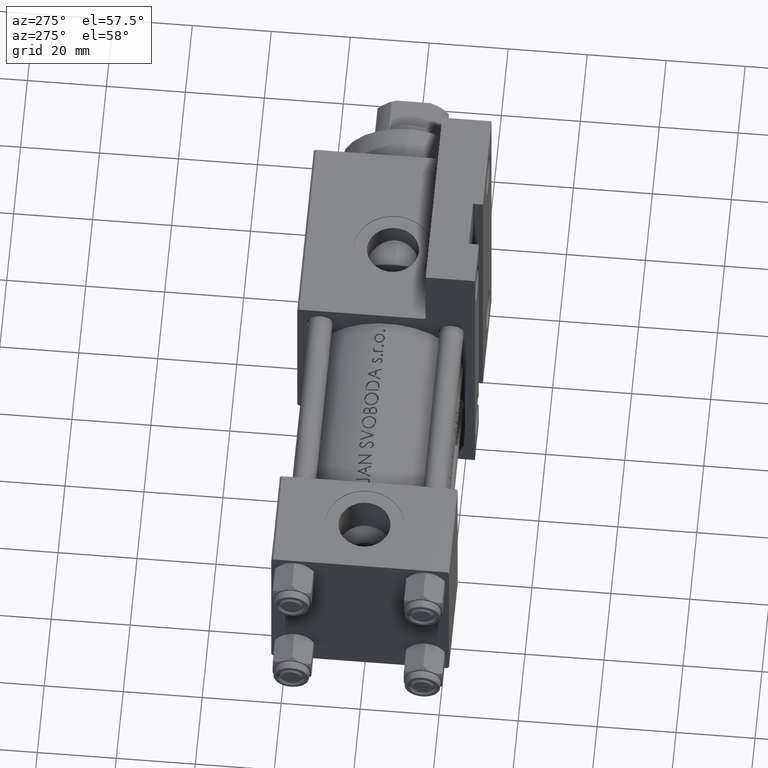
[diagram: clean part render]
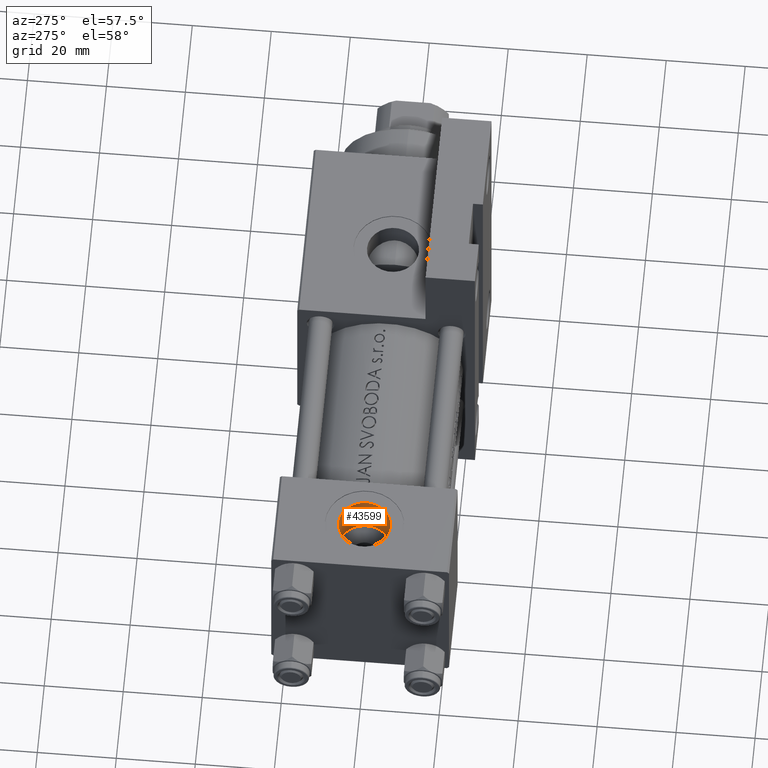
[diagram: same view with one face highlighted and labeled with its STEP entity id]
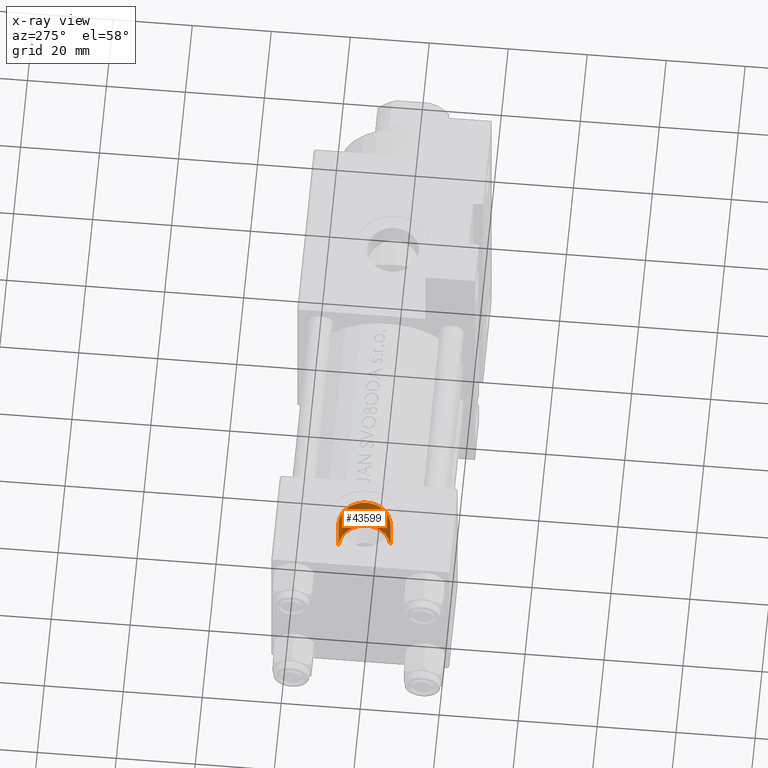
[diagram: x-ray of the same camera — body ghosted, the highlighted face saturated]
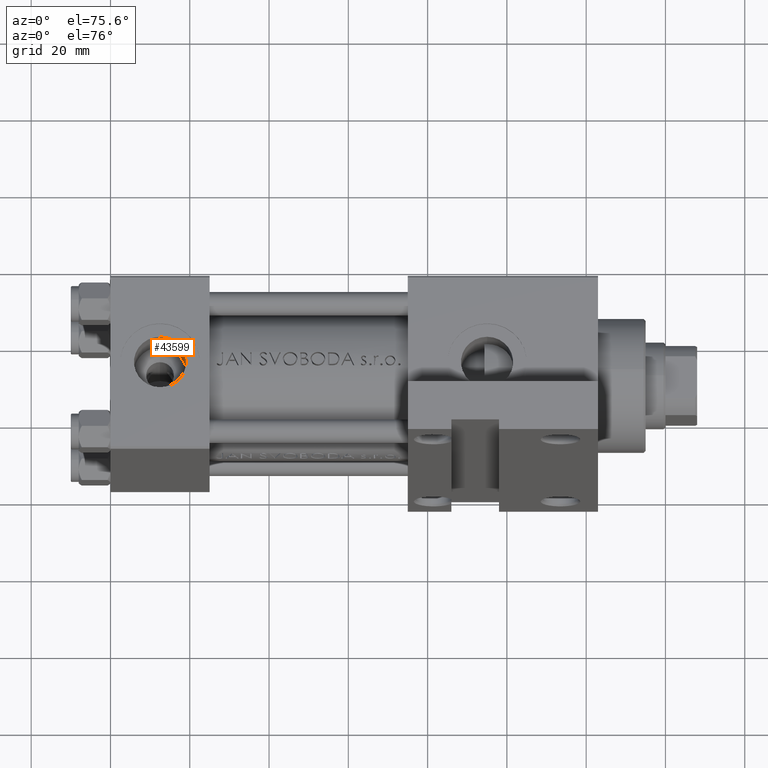
[diagram: same view with one face highlighted and labeled with its STEP entity id]
A machine part, auxiliary view. The second image highlights one B-rep face of the part: STEP entity #43599.
The next image is the same camera in x-ray: the body ghosted, the highlighted face saturated — about 0% of this face is hidden behind the body in this view.
A second angle (auxiliary view) of the same face is appended — the face is thin or edge-on in the first view.
In plain terms, the highlighted cylindrical surface (edge-blend (fillet) strip) has radius 6.58 mm, axis along (-0, -0, 1).
Its self-contained STEP definition (entity closure, byte-faithful):
#323 = DIRECTION ( 'NONE',  ( -0.000000000000000000, -1.000000000000000000, -8.673617379884036705E-17 ) ) ;
#589 = DIRECTION ( 'NONE',  ( 0.000000000000000000, 0.000000000000000000, -1.000000000000000000 ) ) ;
#836 = EDGE_CURVE ( 'NONE', #49152, #35460, #9094, .T. ) ;
#1846 = DIRECTION ( 'NONE',  ( -0.000000000000000000, -1.000000000000000000, -8.673617379884036705E-17 ) ) ;
#3285 = CARTESIAN_POINT ( 'NONE',  ( 12.50000000000000000, -11.53999999999997783, 0.000000000000000000 ) ) ;
#5080 = EDGE_CURVE ( 'NONE', #49152, #18215, #6099, .T. ) ;
#5906 = EDGE_CURVE ( 'NONE', #35460, #37975, #24839, .T. ) ;
#6099 = LINE ( 'NONE', #36576, #22849 ) ;
#6500 = EDGE_LOOP ( 'NONE', ( #14888, #11527, #46573, #9608 ) ) ;
#6724 = CARTESIAN_POINT ( 'NONE',  ( 12.50000000000000000, -11.53999999999997783, -6.579999999999998295 ) ) ;
#6959 = AXIS2_PLACEMENT_3D ( 'NONE', #32752, #36278, #44486 ) ;
#8336 = CARTESIAN_POINT ( 'NONE',  ( 12.50000000000000000, -11.60000000000000142, 9.454242944073598665E-16 ) ) ;
#9094 = CIRCLE ( 'NONE', #19463, 6.579999999999998295 ) ;
#9608 = ORIENTED_EDGE ( 'NONE', *, *, #25857, .T. ) ;
#11527 = ORIENTED_EDGE ( 'NONE', *, *, #836, .T. ) ;
#12584 = FACE_OUTER_BOUND ( 'NONE', #6500, .T. ) ;
#13300 = VECTOR ( 'NONE', #323, 1000.000000000000000 ) ;
#14888 = ORIENTED_EDGE ( 'NONE', *, *, #5080, .F. ) ;
#18215 = VERTEX_POINT ( 'NONE', #47180 ) ;
#19463 = AXIS2_PLACEMENT_3D ( 'NONE', #3285, #32756, #44978 ) ;
#20072 = CYLINDRICAL_SURFACE ( 'NONE', #45044, 6.579999999999998295 ) ;
#22849 = VECTOR ( 'NONE', #1846, 1000.000000000000000 ) ;
#24839 = LINE ( 'NONE', #37562, #13300 ) ;
#25857 = EDGE_CURVE ( 'NONE', #37975, #18215, #36422, .T. ) ;
#28048 = DIRECTION ( 'NONE',  ( -0.000000000000000000, -1.000000000000000000, -8.673617379884036705E-17 ) ) ;
#32752 = CARTESIAN_POINT ( 'NONE',  ( 12.50000000000000000, -22.30000000000000071, 1.734723475976808635E-17 ) ) ;
#32756 = DIRECTION ( 'NONE',  ( -0.000000000000000000, 1.000000000000000000, -0.000000000000000000 ) ) ;
#35460 = VERTEX_POINT ( 'NONE', #6724 ) ;
#36278 = DIRECTION ( 'NONE',  ( 0.000000000000000000, -1.000000000000000000, -8.673617379884036705E-17 ) ) ;
#36422 = CIRCLE ( 'NONE', #6959, 6.579999999999998295 ) ;
#36576 = CARTESIAN_POINT ( 'NONE',  ( 12.50000000000000000, -11.60000000000000142, 6.579999999999999183 ) ) ;
#37562 = CARTESIAN_POINT ( 'NONE',  ( 12.50000000000000000, -11.60000000000000142, -6.579999999999997407 ) ) ;
#37975 = VERTEX_POINT ( 'NONE', #44575 ) ;
#42081 = CARTESIAN_POINT ( 'NONE',  ( 12.50000000000000000, -11.53999999999997783, 6.579999999999998295 ) ) ;
#43599 = ADVANCED_FACE ( 'NONE', ( #12584 ), #20072, .F. ) ;
#44486 = DIRECTION ( 'NONE',  ( 0.000000000000000000, 0.000000000000000000, -1.000000000000000000 ) ) ;
#44575 = CARTESIAN_POINT ( 'NONE',  ( 12.50000000000000000, -22.30000000000000071, -6.579999999999998295 ) ) ;
#44978 = DIRECTION ( 'NONE',  ( 0.000000000000000000, 0.000000000000000000, -1.000000000000000000 ) ) ;
#45044 = AXIS2_PLACEMENT_3D ( 'NONE', #8336, #28048, #589 ) ;
#46573 = ORIENTED_EDGE ( 'NONE', *, *, #5906, .T. ) ;
#47180 = CARTESIAN_POINT ( 'NONE',  ( 12.50000000000000000, -22.30000000000000071, 6.579999999999998295 ) ) ;
#49152 = VERTEX_POINT ( 'NONE', #42081 ) ;